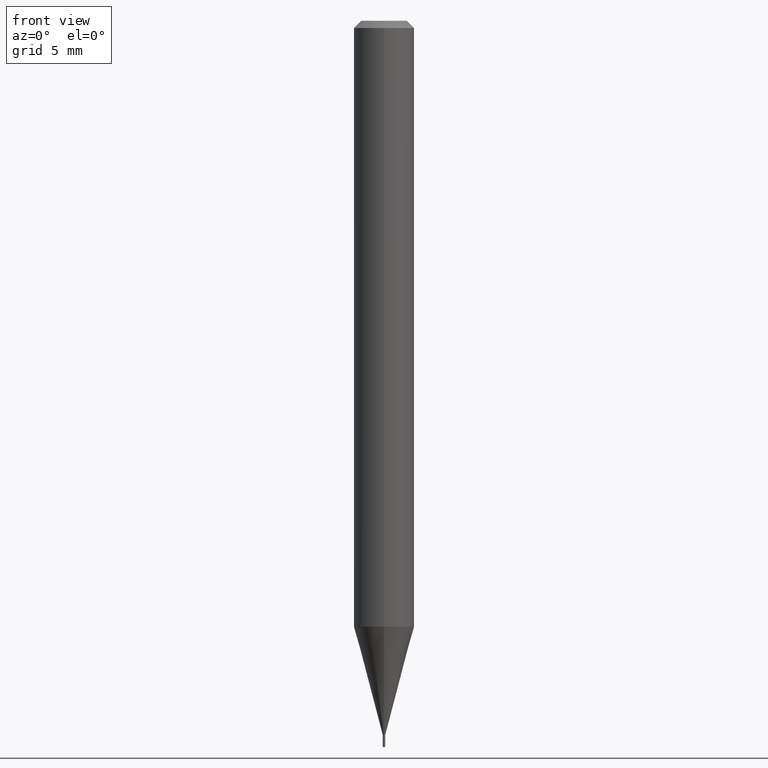
[diagram: clean part render]
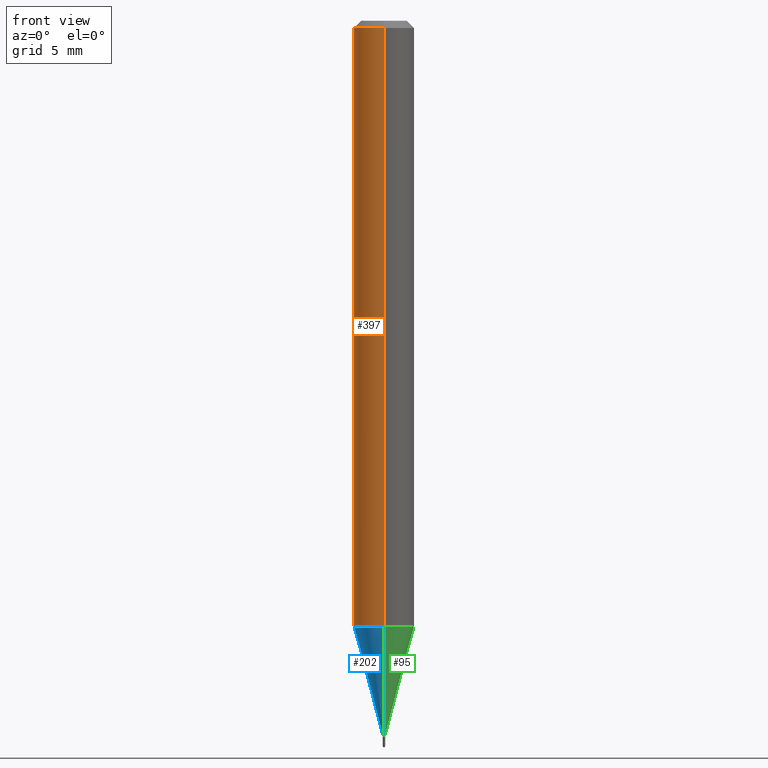
[diagram: same view with three faces highlighted in distinct colors, each labeled with its STEP entity id]
A machine part, front view with three faces highlighted in distinct colors.
Their STEP definitions:

[orange] entity #397 — the highlighted cylindrical surface (edge-blend (fillet) strip) has radius 1.5875 mm, axis along (-0, 0, 1).
#2 = AXIS2_PLACEMENT_3D ( 'NONE', #252, #399, #29 ) ;
#5 = CARTESIAN_POINT ( 'NONE',  ( 4.440892098500930859E-16, 0.06249999999999562850, -1.251076951545868177 ) ) ;
#15 = EDGE_CURVE ( 'NONE', #431, #81, #110, .T. ) ;
#26 = CARTESIAN_POINT ( 'NONE',  ( -4.364351673553912750E-16, -0.06250000000000005551, -0.01499999999999954321 ) ) ;
#29 = DIRECTION ( 'NONE',  ( -6.982962677686265922E-15, -1.000000000000000000, 3.483106191921935554E-15 ) ) ;
#32 = ORIENTED_EDGE ( 'NONE', *, *, #357, .F. ) ;
#51 = CIRCLE ( 'NONE', #2, 0.06250000000000000000 ) ;
#55 = VERTEX_POINT ( 'NONE', #26 ) ;
#62 = DIRECTION ( 'NONE',  ( -2.445080992549888330E-29, 3.492036710041802569E-15, 1.000000000000000000 ) ) ;
#64 = ORIENTED_EDGE ( 'NONE', *, *, #134, .T. ) ;
#74 = AXIS2_PLACEMENT_3D ( 'NONE', #383, #195, #501 ) ;
#81 = VERTEX_POINT ( 'NONE', #178 ) ;
#110 = CIRCLE ( 'NONE', #322, 0.06250000000000000000 ) ;
#113 = VERTEX_POINT ( 'NONE', #159 ) ;
#124 = VECTOR ( 'NONE', #417, 39.37007874015748143 ) ;
#132 = DIRECTION ( 'NONE',  ( -2.445080992549888330E-29, 3.492036710041802569E-15, 1.000000000000000000 ) ) ;
#134 = EDGE_CURVE ( 'NONE', #81, #55, #448, .T. ) ;
#159 = CARTESIAN_POINT ( 'NONE',  ( 4.440892098500933817E-16, 0.06249999999999995837, -0.01499999999999997863 ) ) ;
#178 = CARTESIAN_POINT ( 'NONE',  ( -4.364351673553610517E-16, -0.06250000000000435763, -1.251076951545867733 ) ) ;
#195 = DIRECTION ( 'NONE',  ( -2.445080992549888330E-29, 3.492036710041802569E-15, 1.000000000000000000 ) ) ;
#196 = CARTESIAN_POINT ( 'NONE',  ( 3.058984474442059272E-29, -4.368806641885360110E-15, -1.251076951545867955 ) ) ;
#252 = CARTESIAN_POINT ( 'NONE',  ( 3.667621488824774095E-31, -5.238055065062620777E-17, -0.01499999999999976179 ) ) ;
#277 = EDGE_CURVE ( 'NONE', #431, #113, #282, .T. ) ;
#282 = LINE ( 'NONE', #480, #362 ) ;
#294 = EDGE_LOOP ( 'NONE', ( #387, #471, #64, #32 ) ) ;
#322 = AXIS2_PLACEMENT_3D ( 'NONE', #196, #62, #466 ) ;
#337 = FACE_OUTER_BOUND ( 'NONE', #294, .T. ) ;
#357 = EDGE_CURVE ( 'NONE', #113, #55, #51, .T. ) ;
#362 = VECTOR ( 'NONE', #132, 39.37007874015748143 ) ;
#383 = CARTESIAN_POINT ( 'NONE',  ( 0.000000000000000000, 0.000000000000000000, 0.000000000000000000 ) ) ;
#387 = ORIENTED_EDGE ( 'NONE', *, *, #277, .F. ) ;
#397 = ADVANCED_FACE ( 'NONE', ( #337 ), #497, .T. ) ;
#399 = DIRECTION ( 'NONE',  ( -2.445080992549888330E-29, 3.492036710041802569E-15, 1.000000000000000000 ) ) ;
#413 = CARTESIAN_POINT ( 'NONE',  ( -4.364351673553916201E-16, -0.06250000000000000000, 2.182522943776126359E-16 ) ) ;
#417 = DIRECTION ( 'NONE',  ( -2.445080992549888330E-29, 3.492036710041802569E-15, 1.000000000000000000 ) ) ;
#431 = VERTEX_POINT ( 'NONE', #5 ) ;
#448 = LINE ( 'NONE', #413, #124 ) ;
#466 = DIRECTION ( 'NONE',  ( -6.982962677686265922E-15, -1.000000000000000000, 4.370956789862821150E-15 ) ) ;
#471 = ORIENTED_EDGE ( 'NONE', *, *, #15, .T. ) ;
#480 = CARTESIAN_POINT ( 'NONE',  ( 4.440892098500625669E-16, 0.06250000000000000000, -2.182522943776126359E-16 ) ) ;
#497 = CYLINDRICAL_SURFACE ( 'NONE', #74, 0.06250000000000000000 ) ;
#501 = DIRECTION ( 'NONE',  ( -6.982962677686265922E-15, -1.000000000000000000, 3.492036710041802175E-15 ) ) ;

[blue] entity #202 — the highlighted conical surface has half-angle 15 deg.
#5 = CARTESIAN_POINT ( 'NONE',  ( 4.440892098500930859E-16, 0.06249999999999562850, -1.251076951545868177 ) ) ;
#15 = EDGE_CURVE ( 'NONE', #431, #81, #110, .T. ) ;
#39 = DIRECTION ( 'NONE',  ( -6.982962677686265133E-15, -1.000000000000000000, 0.000000000000000000 ) ) ;
#40 = CARTESIAN_POINT ( 'NONE',  ( 1.776356839403800684E-17, 0.002499999999994770728, -1.474999999999999867 ) ) ;
#62 = DIRECTION ( 'NONE',  ( -2.445080992549888330E-29, 3.492036710041802569E-15, 1.000000000000000000 ) ) ;
#72 = CONICAL_SURFACE ( 'NONE', #379, 0.002499999999999921122, 0.2617993877991504625 ) ;
#78 = CARTESIAN_POINT ( 'NONE',  ( 3.606494464011085468E-29, -5.150754147311658641E-15, -1.474999999999999867 ) ) ;
#81 = VERTEX_POINT ( 'NONE', #178 ) ;
#86 = CIRCLE ( 'NONE', #404, 0.002499999999999921122 ) ;
#110 = CIRCLE ( 'NONE', #322, 0.06250000000000000000 ) ;
#111 = EDGE_CURVE ( 'NONE', #360, #81, #120, .T. ) ;
#120 = LINE ( 'NONE', #470, #344 ) ;
#140 = ORIENTED_EDGE ( 'NONE', *, *, #15, .F. ) ;
#177 = CARTESIAN_POINT ( 'NONE',  ( 3.606494464011085468E-29, -5.150754147311658641E-15, -1.474999999999999867 ) ) ;
#178 = CARTESIAN_POINT ( 'NONE',  ( -4.364351673553610517E-16, -0.06250000000000435763, -1.251076951545867733 ) ) ;
#193 = FACE_OUTER_BOUND ( 'NONE', #278, .T. ) ;
#196 = CARTESIAN_POINT ( 'NONE',  ( 3.058984474442059272E-29, -4.368806641885360110E-15, -1.251076951545867955 ) ) ;
#202 = ADVANCED_FACE ( 'NONE', ( #193 ), #72, .T. ) ;
#208 = CARTESIAN_POINT ( 'NONE',  ( -1.745740669417904699E-17, -0.002500000000005071516, -1.474999999999999867 ) ) ;
#209 = CARTESIAN_POINT ( 'NONE',  ( 2.309263891220657005E-16, 0.002499999999994770728, -1.474999999999999867 ) ) ;
#264 = DIRECTION ( 'NONE',  ( -6.982962677686265133E-15, -1.000000000000000000, 0.000000000000000000 ) ) ;
#278 = EDGE_LOOP ( 'NONE', ( #289, #365, #354, #140 ) ) ;
#289 = ORIENTED_EDGE ( 'NONE', *, *, #486, .F. ) ;
#322 = AXIS2_PLACEMENT_3D ( 'NONE', #196, #62, #466 ) ;
#323 = EDGE_CURVE ( 'NONE', #370, #360, #86, .T. ) ;
#344 = VECTOR ( 'NONE', #355, 39.37007874015748854 ) ;
#354 = ORIENTED_EDGE ( 'NONE', *, *, #111, .T. ) ;
#355 = DIRECTION ( 'NONE',  ( -1.807323732225331323E-15, -0.2588190451025183525, 0.9659258262890689783 ) ) ;
#360 = VERTEX_POINT ( 'NONE', #208 ) ;
#365 = ORIENTED_EDGE ( 'NONE', *, *, #323, .T. ) ;
#370 = VERTEX_POINT ( 'NONE', #209 ) ;
#371 = DIRECTION ( 'NONE',  ( 1.839019923739601499E-15, 0.2588190451025251249, 0.9659258262890670910 ) ) ;
#379 = AXIS2_PLACEMENT_3D ( 'NONE', #177, #440, #264 ) ;
#404 = AXIS2_PLACEMENT_3D ( 'NONE', #78, #408, #39 ) ;
#408 = DIRECTION ( 'NONE',  ( -2.445080992549888330E-29, 3.492036710041802569E-15, 1.000000000000000000 ) ) ;
#409 = LINE ( 'NONE', #40, #441 ) ;
#431 = VERTEX_POINT ( 'NONE', #5 ) ;
#440 = DIRECTION ( 'NONE',  ( -2.445080992549888330E-29, 3.492036710041802569E-15, 1.000000000000000000 ) ) ;
#441 = VECTOR ( 'NONE', #371, 39.37007874015748854 ) ;
#466 = DIRECTION ( 'NONE',  ( -6.982962677686265922E-15, -1.000000000000000000, 4.370956789862821150E-15 ) ) ;
#470 = CARTESIAN_POINT ( 'NONE',  ( -1.745740669417904699E-17, -0.002500000000005071516, -1.474999999999999867 ) ) ;
#486 = EDGE_CURVE ( 'NONE', #370, #431, #409, .T. ) ;

[green] entity #95 — the highlighted conical surface has half-angle 15 deg.
#5 = CARTESIAN_POINT ( 'NONE',  ( 4.440892098500930859E-16, 0.06249999999999562850, -1.251076951545868177 ) ) ;
#30 = CARTESIAN_POINT ( 'NONE',  ( 3.606494464011085468E-29, -5.150754147311658641E-15, -1.474999999999999867 ) ) ;
#40 = CARTESIAN_POINT ( 'NONE',  ( 1.776356839403800684E-17, 0.002499999999994770728, -1.474999999999999867 ) ) ;
#57 = DIRECTION ( 'NONE',  ( -2.445080992549888330E-29, 3.492036710041802569E-15, 1.000000000000000000 ) ) ;
#81 = VERTEX_POINT ( 'NONE', #178 ) ;
#85 = CONICAL_SURFACE ( 'NONE', #214, 0.002499999999999921122, 0.2617993877991504625 ) ;
#90 = EDGE_LOOP ( 'NONE', ( #305, #259, #494, #454 ) ) ;
#92 = EDGE_CURVE ( 'NONE', #81, #431, #274, .T. ) ;
#95 = ADVANCED_FACE ( 'NONE', ( #141 ), #85, .T. ) ;
#111 = EDGE_CURVE ( 'NONE', #360, #81, #120, .T. ) ;
#120 = LINE ( 'NONE', #470, #344 ) ;
#130 = DIRECTION ( 'NONE',  ( -6.982962677686265133E-15, -1.000000000000000000, 0.000000000000000000 ) ) ;
#139 = CARTESIAN_POINT ( 'NONE',  ( 3.058984474442059272E-29, -4.368806641885360110E-15, -1.251076951545867955 ) ) ;
#141 = FACE_OUTER_BOUND ( 'NONE', #90, .T. ) ;
#163 = AXIS2_PLACEMENT_3D ( 'NONE', #30, #57, #380 ) ;
#178 = CARTESIAN_POINT ( 'NONE',  ( -4.364351673553610517E-16, -0.06250000000000435763, -1.251076951545867733 ) ) ;
#207 = EDGE_CURVE ( 'NONE', #360, #370, #293, .T. ) ;
#208 = CARTESIAN_POINT ( 'NONE',  ( -1.745740669417904699E-17, -0.002500000000005071516, -1.474999999999999867 ) ) ;
#209 = CARTESIAN_POINT ( 'NONE',  ( 2.309263891220657005E-16, 0.002499999999994770728, -1.474999999999999867 ) ) ;
#214 = AXIS2_PLACEMENT_3D ( 'NONE', #295, #445, #130 ) ;
#220 = DIRECTION ( 'NONE',  ( -2.445080992549888330E-29, 3.492036710041802569E-15, 1.000000000000000000 ) ) ;
#259 = ORIENTED_EDGE ( 'NONE', *, *, #486, .T. ) ;
#267 = AXIS2_PLACEMENT_3D ( 'NONE', #139, #220, #336 ) ;
#274 = CIRCLE ( 'NONE', #267, 0.06250000000000000000 ) ;
#293 = CIRCLE ( 'NONE', #163, 0.002499999999999921122 ) ;
#295 = CARTESIAN_POINT ( 'NONE',  ( 3.606494464011085468E-29, -5.150754147311658641E-15, -1.474999999999999867 ) ) ;
#305 = ORIENTED_EDGE ( 'NONE', *, *, #207, .T. ) ;
#336 = DIRECTION ( 'NONE',  ( -6.982962677686265922E-15, -1.000000000000000000, 4.370956789862821150E-15 ) ) ;
#344 = VECTOR ( 'NONE', #355, 39.37007874015748854 ) ;
#355 = DIRECTION ( 'NONE',  ( -1.807323732225331323E-15, -0.2588190451025183525, 0.9659258262890689783 ) ) ;
#360 = VERTEX_POINT ( 'NONE', #208 ) ;
#370 = VERTEX_POINT ( 'NONE', #209 ) ;
#371 = DIRECTION ( 'NONE',  ( 1.839019923739601499E-15, 0.2588190451025251249, 0.9659258262890670910 ) ) ;
#380 = DIRECTION ( 'NONE',  ( -6.982962677686265133E-15, -1.000000000000000000, 0.000000000000000000 ) ) ;
#409 = LINE ( 'NONE', #40, #441 ) ;
#431 = VERTEX_POINT ( 'NONE', #5 ) ;
#441 = VECTOR ( 'NONE', #371, 39.37007874015748854 ) ;
#445 = DIRECTION ( 'NONE',  ( -2.445080992549888330E-29, 3.492036710041802569E-15, 1.000000000000000000 ) ) ;
#454 = ORIENTED_EDGE ( 'NONE', *, *, #111, .F. ) ;
#470 = CARTESIAN_POINT ( 'NONE',  ( -1.745740669417904699E-17, -0.002500000000005071516, -1.474999999999999867 ) ) ;
#486 = EDGE_CURVE ( 'NONE', #370, #431, #409, .T. ) ;
#494 = ORIENTED_EDGE ( 'NONE', *, *, #92, .F. ) ;